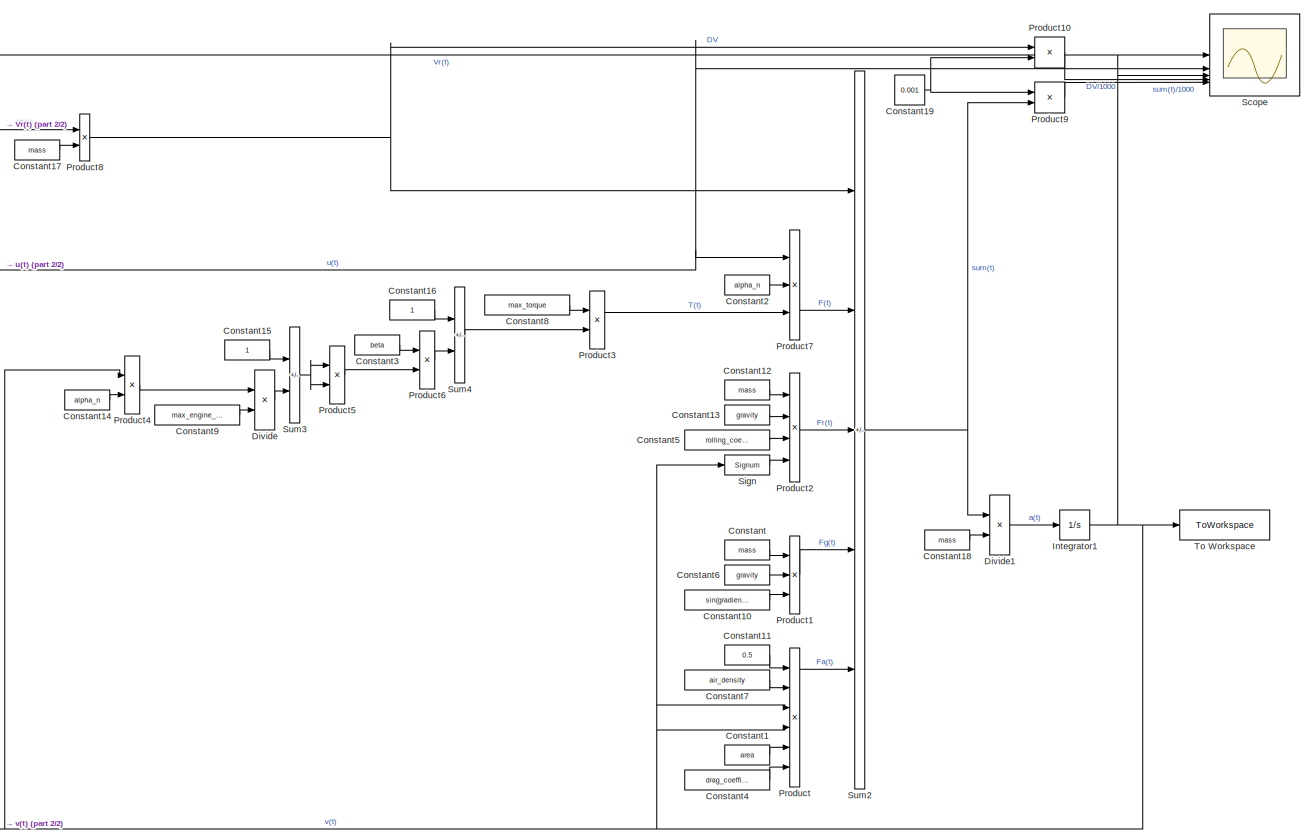
[diagram: root canvas - part 1/2, right side, full height]
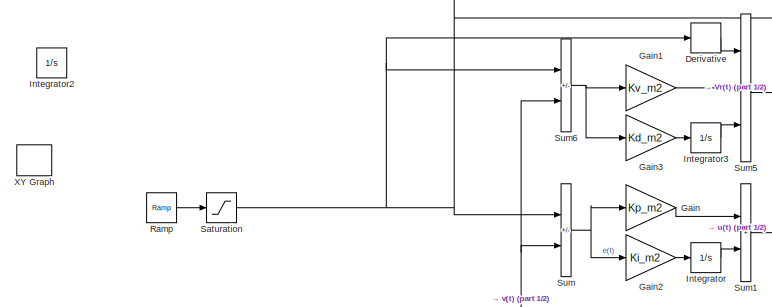
[diagram: root canvas - part 2/2, top left region]
MODEL slx_cf4e973b01e6
KIND model
CONFIG AbsTol = auto
CONFIG EnableMultiTasking = off
CONFIG FixedStep = auto
CONFIG MaxStep = auto
CONFIG MinStep = auto
CONFIG RelTol = 1e-3
CONFIG SampleTimeConstraint = Unconstrained
CONFIG SolverName = VariableStepAuto
CONFIG StartTime = 0.0
CONFIG StopTime = 60
BLOCK [Constant] Constant
  Value = mass
BLOCK [Constant] Constant1
  Value = area
BLOCK [Constant] Constant10
  Value = sin(gradient)
BLOCK [Constant] Constant11
  Value = 0.5
BLOCK [Constant] Constant12
  Value = mass
BLOCK [Constant] Constant13
  Value = gravity
BLOCK [Constant] Constant14
  Value = alpha_n
BLOCK [Constant] Constant15
BLOCK [Constant] Constant16
BLOCK [Constant] Constant17
  Value = mass
BLOCK [Constant] Constant18
  Value = mass
BLOCK [Constant] Constant19
  Value = 0.001
BLOCK [Constant] Constant2
  Value = alpha_n
BLOCK [Constant] Constant3
  Value = beta
BLOCK [Constant] Constant4
  Value = drag_coefficient
BLOCK [Constant] Constant5
  Value = rolling_coefficient
BLOCK [Constant] Constant6
  Value = gravity
BLOCK [Constant] Constant7
  Value = air_density
BLOCK [Constant] Constant8
  Value = max_torque
BLOCK [Constant] Constant9
  Value = max_engine_revs
BLOCK [Derivative] Derivative
BLOCK [Product] Divide
  Inputs = */
BLOCK [Product] Divide1
  Inputs = */
BLOCK [Gain] Gain
  Gain = Kp_m2
BLOCK [Gain] Gain1
  Gain = Kv_m2
BLOCK [Gain] Gain2
  Gain = Ki_m2
BLOCK [Gain] Gain3
  Gain = Kd_m2
BLOCK [Integrator] Integrator
BLOCK [Integrator] Integrator1
BLOCK [Integrator] Integrator2
BLOCK [Integrator] Integrator3
BLOCK [Product] Product
  Inputs = 6
BLOCK [Product] Product1
  Inputs = 3
BLOCK [Product] Product10
BLOCK [Product] Product2
  Inputs = 4
BLOCK [Product] Product3
BLOCK [Product] Product4
BLOCK [Product] Product5
BLOCK [Product] Product6
BLOCK [Product] Product7
  Inputs = 3
BLOCK [Product] Product8
BLOCK [Product] Product9
BLOCK [Reference] Ramp  REF=simulink/Sources/Ramp
  SourceBlock = simulink/Sources/Ramp
  SourceType = Ramp
BLOCK [Saturate] Saturation
  LowerLimit = initial_speed
  UpperLimit = max_speed
BLOCK [Scope] Scope
  Floating = off
  NumInputPorts = 5
  ScopeSpecificationString = Simulink.scopes.TimeScopeBlockCfg('CurrentConfiguration', extmgr.ConfigurationSet(extmgr.Configuration('Core','General UI',true),extmgr.Configuration('Core','Source UI',true),extmgr.Configuration('Sources','WiredSimulink',true),extmgr.Configuration('Visuals','Time Domain',true,'SerializedDisplays',{struct('MinYLimReal','-8.08001','MaxYLimReal','67.56928','YLabelReal','','MinYLimMag','0.00000','Max...<+1394ch>
BLOCK [Signum] Sign
BLOCK [Sum] Sum
  IconShape = rectangular
  Inputs = +-
BLOCK [Sum] Sum1
  IconShape = rectangular
BLOCK [Sum] Sum2
  IconShape = rectangular
  Inputs = ++---
BLOCK [Sum] Sum3
  IconShape = rectangular
  Inputs = -+
BLOCK [Sum] Sum4
  IconShape = rectangular
  Inputs = +-
BLOCK [Sum] Sum5
  IconShape = rectangular
  Inputs = +++
BLOCK [Sum] Sum6
  IconShape = rectangular
  Inputs = +-
BLOCK [ToWorkspace] To Workspace
  FixptAsFi = on
  MaxDataPoints = inf
  SampleTime = -1
  SaveFormat = Timeseries
  VariableName = simout_2
BLOCK [Record] XY Graph
  CompatibilityTag = XY
  FileSettingsInternal = {"entries":[{"content":{"excelSettings":{"content":{},"type":"Streamout.ExcelSettings"}},"type":"Streamout.FileSettingStorage","uuid":""}],"packageUris":["http:\/\/schema.mathworks.com\/mf0\/streamout_blocks\/R2020a"],"version":"1.0"}
  Layout = [1 1]
  SignalsInternal = {"entries":[{"content":{"signals":[{"content":{"blockPath":[],"dimensions":[1],"domain":"","lineColor":"#edb120","port":1,"sid":[""],"signalID":247},"type":"RecordBlkView.Signal","uuid":""},{"content":{"blockPath":[],"dimensions":[1],"domain":"","lineColor":"#7e2f8e","port":2,"sid":[""],"signalID":251},"type":"RecordBlkView.Signal","uuid":""}]},"type":"RecordBlkView.InputSignals","uuid":""}],"pack...<+90ch>
  VisualizationBindings = {"xyplotplugin":{"info":[{"series":[],"subplotID":1}]}}
LINE Constant10:1 -> Product1:3
LINE Constant11:1 -> Product:1
LINE Constant12:1 -> Product2:1
LINE Constant13:1 -> Product2:2
LINE Constant14:1 -> Product4:2
LINE Constant15:1 -> Sum3:1
LINE Constant16:1 -> Sum4:1
LINE Constant17:1 -> Product8:2
LINE Constant18:1 -> Divide1:2
NET Constant19:1 -> Product10:2, Product9:1
LINE Constant1:1 -> Product:5
LINE Constant2:1 -> Product7:2
LINE Constant3:1 -> Product6:1
LINE Constant4:1 -> Product:6
LINE Constant5:1 -> Product2:3
LINE Constant6:1 -> Product1:2
LINE Constant7:1 -> Product:2
LINE Constant8:1 -> Product3:1
LINE Constant9:1 -> Divide:2
LINE Constant:1 -> Product1:1
LINE Derivative:1 -> Sum5:1
LINE Divide1:1 -> Integrator1:1
LINE Divide:1 -> Sum3:2
LINE Gain1:1 -> Sum5:2
LINE Gain2:1 -> Integrator:1
LINE Gain3:1 -> Integrator3:1
LINE Gain:1 -> Sum1:1
NET Integrator1:1 -> Product4:1, Product:3, Product:4, Scope:3, Sign:1, Sum6:2, Sum:2, To Workspace:1
LINE Integrator3:1 -> Sum5:3
LINE Integrator:1 -> Sum1:2
LINE Product10:1 -> Scope:4
LINE Product1:1 -> Sum2:4
LINE Product2:1 -> Sum2:3
LINE Product3:1 -> Product7:3
LINE Product4:1 -> Divide:1
LINE Product5:1 -> Product6:2
LINE Product6:1 -> Sum4:2
LINE Product7:1 -> Sum2:2
NET Product8:1 -> Product10:1, Sum2:1
LINE Product9:1 -> Scope:5
LINE Product:1 -> Sum2:5
LINE Ramp:1 -> Saturation:1
NET Saturation:1 -> Derivative:1, Scope:1, Sum6:1, Sum:1
LINE Sign:1 -> Product2:4
NET Sum1:1 -> Product7:1, Scope:2
NET Sum2:1 -> Divide1:1, Product9:2
NET Sum3:1 -> Product5:1, Product5:2
LINE Sum4:1 -> Product3:2
LINE Sum5:1 -> Product8:1
NET Sum6:1 -> Gain1:1, Gain3:1
NET Sum:1 -> Gain2:1, Gain:1
note: NET lines group one-source signal fan-out (src -> all destinations, sorted); 1:1 wires keep LINE
